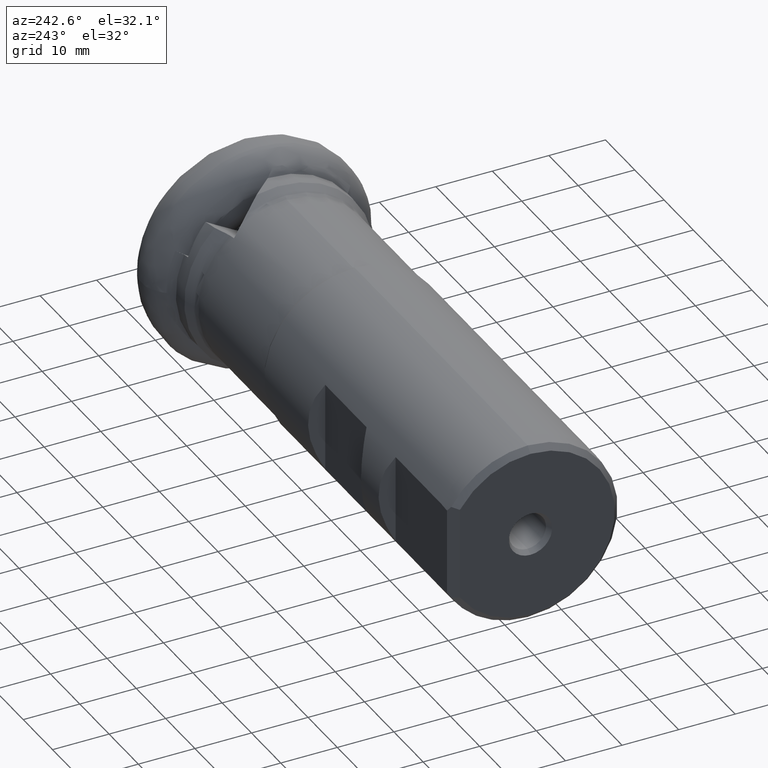
[diagram: clean part render]
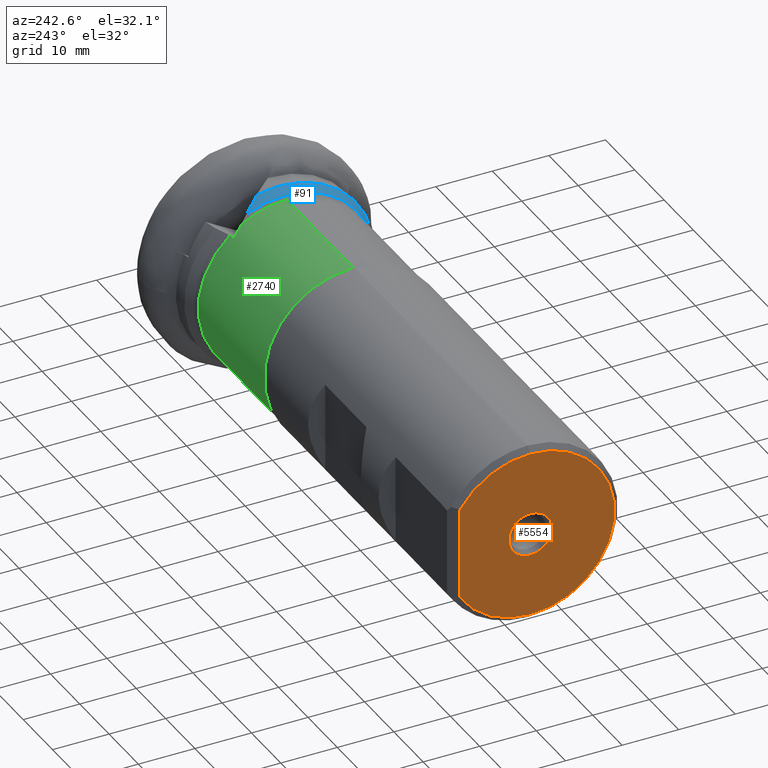
[diagram: same view with three faces highlighted in distinct colors, each labeled with its STEP entity id]
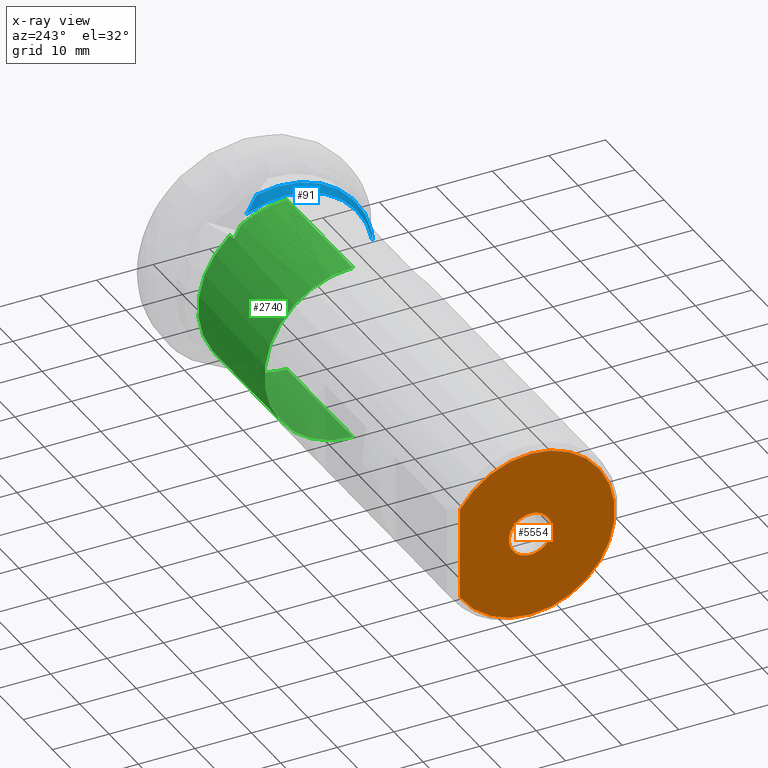
[diagram: x-ray of the same camera — body ghosted, the three highlighted faces saturated]
A machine part, auxiliary view with three faces highlighted in distinct colors.
The next image is the same camera in x-ray (body ghosted, the three faces saturated) — at least one of them is partly hidden behind the body in this view.
Their STEP definitions:

[orange] entity #5554 — the highlighted planar face has unit normal (-1, 0, 0).
#124 = ORIENTED_EDGE ( 'NONE', *, *, #5889, .F. ) ;
#247 = AXIS2_PLACEMENT_3D ( 'NONE', #1382, #2909, #1938 ) ;
#461 = EDGE_LOOP ( 'NONE', ( #4082, #124, #570, #871 ) ) ;
#477 = CIRCLE ( 'NONE', #3509, 14.89999999999998800 ) ;
#561 = EDGE_CURVE ( 'NONE', #2076, #1329, #477, .T. ) ;
#570 = ORIENTED_EDGE ( 'NONE', *, *, #3918, .F. ) ;
#593 = AXIS2_PLACEMENT_3D ( 'NONE', #4986, #5922, #1128 ) ;
#647 = CARTESIAN_POINT ( 'NONE',  ( -98.75000000000000000, 12.49999999999999100, -25.00000000000000000 ) ) ;
#733 = AXIS2_PLACEMENT_3D ( 'NONE', #1921, #6398, #3883 ) ;
#762 = FACE_BOUND ( 'NONE', #1785, .T. ) ;
#871 = ORIENTED_EDGE ( 'NONE', *, *, #561, .F. ) ;
#1004 = DIRECTION ( 'NONE',  ( 0.0000000000000000000, 0.0000000000000000000, -1.000000000000000000 ) ) ;
#1076 = CIRCLE ( 'NONE', #3526, 3.827350269189615100 ) ;
#1128 = DIRECTION ( 'NONE',  ( 0.0000000000000000000, 0.0000000000000000000, 1.000000000000000000 ) ) ;
#1329 = VERTEX_POINT ( 'NONE', #2568 ) ;
#1382 = CARTESIAN_POINT ( 'NONE',  ( -98.75000000000000000, 0.0000000000000000000, 0.0000000000000000000 ) ) ;
#1785 = EDGE_LOOP ( 'NONE', ( #5994, #1803 ) ) ;
#1803 = ORIENTED_EDGE ( 'NONE', *, *, #4652, .T. ) ;
#1854 = CARTESIAN_POINT ( 'NONE',  ( -98.75000000000000000, 0.0000000000000000000, 0.0000000000000000000 ) ) ;
#1921 = CARTESIAN_POINT ( 'NONE',  ( -98.75000000000000000, 0.0000000000000000000, 0.0000000000000000000 ) ) ;
#1938 = DIRECTION ( 'NONE',  ( 0.0000000000000000000, 0.0000000000000000000, -1.000000000000000000 ) ) ;
#2039 = CARTESIAN_POINT ( 'NONE',  ( -98.75000000000000000, 12.49999999999999100, 8.109253973085310800 ) ) ;
#2076 = VERTEX_POINT ( 'NONE', #2039 ) ;
#2282 = EDGE_CURVE ( 'NONE', #5644, #2076, #4859, .T. ) ;
#2408 = CARTESIAN_POINT ( 'NONE',  ( -98.75000000000000000, 4.687152256378822200E-016, -3.827350269189615100 ) ) ;
#2412 = DIRECTION ( 'NONE',  ( 1.000000000000000000, -0.0000000000000000000, -0.0000000000000000000 ) ) ;
#2568 = CARTESIAN_POINT ( 'NONE',  ( -98.75000000000000000, 1.885956070686923400E-015, 14.89999999999998800 ) ) ;
#2734 = EDGE_CURVE ( 'NONE', #6203, #5302, #6091, .T. ) ;
#2816 = CIRCLE ( 'NONE', #3982, 14.89999999999998800 ) ;
#2909 = DIRECTION ( 'NONE',  ( 1.000000000000000000, -0.0000000000000000000, -0.0000000000000000000 ) ) ;
#3015 = DIRECTION ( 'NONE',  ( 1.000000000000000000, -0.0000000000000000000, -0.0000000000000000000 ) ) ;
#3509 = AXIS2_PLACEMENT_3D ( 'NONE', #1854, #6336, #4821 ) ;
#3521 = PLANE ( 'NONE',  #593 ) ;
#3526 = AXIS2_PLACEMENT_3D ( 'NONE', #6461, #2412, #5212 ) ;
#3565 = VECTOR ( 'NONE', #5121, 1000.000000000000000 ) ;
#3629 = CARTESIAN_POINT ( 'NONE',  ( -98.75000000000000000, 12.49999999999999100, -8.109253973085310800 ) ) ;
#3883 = DIRECTION ( 'NONE',  ( 0.0000000000000000000, 0.0000000000000000000, -1.000000000000000000 ) ) ;
#3918 = EDGE_CURVE ( 'NONE', #1329, #6176, #2816, .T. ) ;
#3982 = AXIS2_PLACEMENT_3D ( 'NONE', #5962, #3015, #1004 ) ;
#4082 = ORIENTED_EDGE ( 'NONE', *, *, #2282, .F. ) ;
#4652 = EDGE_CURVE ( 'NONE', #5302, #6203, #1076, .T. ) ;
#4667 = CARTESIAN_POINT ( 'NONE',  ( -98.75000000000000000, 0.0000000000000000000, 3.827350269189615100 ) ) ;
#4821 = DIRECTION ( 'NONE',  ( 0.0000000000000000000, 0.0000000000000000000, -1.000000000000000000 ) ) ;
#4859 = LINE ( 'NONE', #647, #3565 ) ;
#4986 = CARTESIAN_POINT ( 'NONE',  ( -98.75000000000000000, 14.89999999999998800, 0.0000000000000000000 ) ) ;
#5121 = DIRECTION ( 'NONE',  ( -0.0000000000000000000, -0.0000000000000000000, 1.000000000000000000 ) ) ;
#5196 = CARTESIAN_POINT ( 'NONE',  ( -98.75000000000000000, 0.0000000000000000000, -14.89999999999998800 ) ) ;
#5212 = DIRECTION ( 'NONE',  ( 0.0000000000000000000, 0.0000000000000000000, -1.000000000000000000 ) ) ;
#5302 = VERTEX_POINT ( 'NONE', #2408 ) ;
#5554 = ADVANCED_FACE ( 'NONE', ( #5587, #762 ), #3521, .T. ) ;
#5587 = FACE_OUTER_BOUND ( 'NONE', #461, .T. ) ;
#5644 = VERTEX_POINT ( 'NONE', #3629 ) ;
#5889 = EDGE_CURVE ( 'NONE', #6176, #5644, #6204, .T. ) ;
#5922 = DIRECTION ( 'NONE',  ( -1.000000000000000000, 0.0000000000000000000, 0.0000000000000000000 ) ) ;
#5962 = CARTESIAN_POINT ( 'NONE',  ( -98.75000000000000000, 0.0000000000000000000, 0.0000000000000000000 ) ) ;
#5994 = ORIENTED_EDGE ( 'NONE', *, *, #2734, .T. ) ;
#6091 = CIRCLE ( 'NONE', #733, 3.827350269189615100 ) ;
#6176 = VERTEX_POINT ( 'NONE', #5196 ) ;
#6203 = VERTEX_POINT ( 'NONE', #4667 ) ;
#6204 = CIRCLE ( 'NONE', #247, 14.89999999999998800 ) ;
#6336 = DIRECTION ( 'NONE',  ( 1.000000000000000000, -0.0000000000000000000, -0.0000000000000000000 ) ) ;
#6398 = DIRECTION ( 'NONE',  ( 1.000000000000000000, -0.0000000000000000000, -0.0000000000000000000 ) ) ;
#6461 = CARTESIAN_POINT ( 'NONE',  ( -98.75000000000000000, 0.0000000000000000000, 0.0000000000000000000 ) ) ;

[blue] entity #91 — the highlighted conical surface has half-angle 27.072 deg.
#91 = ADVANCED_FACE ( 'NONE', ( #4106 ), #2334, .T. ) ;
#101 = CARTESIAN_POINT ( 'NONE',  ( -12.99999999999999800, 3.998106028385802100, 16.31732662496480300 ) ) ;
#249 = CARTESIAN_POINT ( 'NONE',  ( -14.72339999999999800, -15.63252926984126700, 3.007148356365798100 ) ) ;
#281 = CIRCLE ( 'NONE', #4675, 15.91913667915560600 ) ;
#363 = CARTESIAN_POINT ( 'NONE',  ( -14.72339999999999800, 6.684174557346136000, 14.44786223275138900 ) ) ;
#507 = DIRECTION ( 'NONE',  ( 1.000000000000000000, -0.0000000000000000000, -0.0000000000000000000 ) ) ;
#617 = DIRECTION ( 'NONE',  ( 1.000000000000000000, -0.0000000000000000000, -0.0000000000000000000 ) ) ;
#643 = CIRCLE ( 'NONE', #3538, 16.80000000000000100 ) ;
#792 = CARTESIAN_POINT ( 'NONE',  ( -12.99999999999999800, -16.38294840775638400, 3.720080841701238800 ) ) ;
#884 = AXIS2_PLACEMENT_3D ( 'NONE', #3642, #617, #3557 ) ;
#983 = DIRECTION ( 'NONE',  ( 0.0000000000000000000, 0.0000000000000000000, -1.000000000000000000 ) ) ;
#1057 = EDGE_CURVE ( 'NONE', #4307, #4271, #5845, .T. ) ;
#1660 = EDGE_CURVE ( 'NONE', #5343, #5427, #6403, .T. ) ;
#2334 = CONICAL_SURFACE ( 'NONE', #884, 16.80000000000000100, 0.4725035751145750300 ) ;
#2356 = CARTESIAN_POINT ( 'NONE',  ( -14.72339999999999800, -15.63252926984126700, 3.007148356365798100 ) ) ;
#2506 = ORIENTED_EDGE ( 'NONE', *, *, #3447, .F. ) ;
#2704 = CARTESIAN_POINT ( 'NONE',  ( -14.72339999999999800, 6.684174557346136000, 14.44786223275138900 ) ) ;
#3137 = ORIENTED_EDGE ( 'NONE', *, *, #4956, .T. ) ;
#3447 = EDGE_CURVE ( 'NONE', #5343, #4307, #643, .T. ) ;
#3538 = AXIS2_PLACEMENT_3D ( 'NONE', #5826, #4874, #983 ) ;
#3557 = DIRECTION ( 'NONE',  ( 0.0000000000000000000, 0.0000000000000000000, -1.000000000000000000 ) ) ;
#3642 = CARTESIAN_POINT ( 'NONE',  ( -13.00000000000000000, 0.0000000000000000000, 0.0000000000000000000 ) ) ;
#3998 = DIRECTION ( 'NONE',  ( 0.0000000000000000000, 0.0000000000000000000, -1.000000000000000000 ) ) ;
#4106 = FACE_OUTER_BOUND ( 'NONE', #4348, .T. ) ;
#4160 = CARTESIAN_POINT ( 'NONE',  ( -14.21259469577266400, 5.838984988474771300, 15.12655110445228800 ) ) ;
#4208 = CARTESIAN_POINT ( 'NONE',  ( -13.63734042177240400, 4.942401257743641800, 15.75056026176461700 ) ) ;
#4271 = VERTEX_POINT ( 'NONE', #2356 ) ;
#4291 = CARTESIAN_POINT ( 'NONE',  ( -14.15033999104015700, -15.88488492053111200, 3.245843614536485500 ) ) ;
#4307 = VERTEX_POINT ( 'NONE', #4972 ) ;
#4348 = EDGE_LOOP ( 'NONE', ( #2506, #4377, #3137, #6160 ) ) ;
#4377 = ORIENTED_EDGE ( 'NONE', *, *, #1660, .T. ) ;
#4675 = AXIS2_PLACEMENT_3D ( 'NONE', #4969, #507, #3998 ) ;
#4693 = CARTESIAN_POINT ( 'NONE',  ( -13.57578202778335100, -16.13489961238327200, 3.483430411376357200 ) ) ;
#4867 = CARTESIAN_POINT ( 'NONE',  ( -12.99999999999999800, 3.998106028385802100, 16.31732662496480300 ) ) ;
#4874 = DIRECTION ( 'NONE',  ( 1.000000000000000000, -0.0000000000000000000, -0.0000000000000000000 ) ) ;
#4956 = EDGE_CURVE ( 'NONE', #5427, #4271, #281, .T. ) ;
#4969 = CARTESIAN_POINT ( 'NONE',  ( -14.72340000000000000, 0.0000000000000000000, 0.0000000000000000000 ) ) ;
#4972 = CARTESIAN_POINT ( 'NONE',  ( -12.99999999999999800, -16.38294840775638400, 3.720080841701238800 ) ) ;
#5343 = VERTEX_POINT ( 'NONE', #4867 ) ;
#5427 = VERTEX_POINT ( 'NONE', #363 ) ;
#5826 = CARTESIAN_POINT ( 'NONE',  ( -13.00000000000000000, 0.0000000000000000000, 0.0000000000000000000 ) ) ;
#5845 = B_SPLINE_CURVE_WITH_KNOTS ( 'NONE', 3,
 ( #792, #4693, #4291, #249 ),
 .UNSPECIFIED., .F., .F.,
 ( 4, 4 ),
 ( 2.327656462826932700E-007, 0.002010583275183320400 ),
 .UNSPECIFIED. ) ;
#6160 = ORIENTED_EDGE ( 'NONE', *, *, #1057, .F. ) ;
#6403 =( BOUNDED_CURVE ( )  B_SPLINE_CURVE ( 3, ( #101, #4208, #4160, #2704 ),
 .UNSPECIFIED., .F., .F. ) 
 B_SPLINE_CURVE_WITH_KNOTS ( ( 4, 4 ),
 ( 2.550094660820041400, 2.678295221997243100 ),
 .UNSPECIFIED. ) 
 CURVE ( )  GEOMETRIC_REPRESENTATION_ITEM ( )  RATIONAL_B_SPLINE_CURVE ( ( 1.000000000000000000, 0.9986308535734630400, 0.9986308535734630400, 1.000000000000000000 ) ) 
 REPRESENTATION_ITEM ( '' )  );

[green] entity #2740 — the highlighted cylindrical surface (partial cylindrical patch) has radius 15.7 mm, axis along (1, -0, -0).
#10 = AXIS2_PLACEMENT_3D ( 'NONE', #440, #932, #3954 ) ;
#28 = ORIENTED_EDGE ( 'NONE', *, *, #2594, .T. ) ;
#69 = EDGE_LOOP ( 'NONE', ( #4000, #3940, #5623, #28, #3180, #708, #5387, #5807, #4114, #2925 ) ) ;
#420 = CARTESIAN_POINT ( 'NONE',  ( -16.82544663111128700, 9.978874949329496100, 12.12072830920836200 ) ) ;
#440 = CARTESIAN_POINT ( 'NONE',  ( -38.23038475772932500, 0.0000000000000000000, 0.0000000000000000000 ) ) ;
#457 = EDGE_CURVE ( 'NONE', #2619, #6039, #4775, .T. ) ;
#480 = CYLINDRICAL_SURFACE ( 'NONE', #3114, 15.69999999999999900 ) ;
#510 = CARTESIAN_POINT ( 'NONE',  ( -15.63363394381394800, 10.11602382964587900, 12.00650081739207500 ) ) ;
#535 = CARTESIAN_POINT ( 'NONE',  ( -16.03173401764762600, 10.07052421958364800, 12.04483631135734900 ) ) ;
#554 = VERTEX_POINT ( 'NONE', #5646 ) ;
#708 = ORIENTED_EDGE ( 'NONE', *, *, #831, .F. ) ;
#831 = EDGE_CURVE ( 'NONE', #5849, #982, #6244, .T. ) ;
#904 = DIRECTION ( 'NONE',  ( 0.0000000000000000000, 0.0000000000000000000, -1.000000000000000000 ) ) ;
#926 = EDGE_CURVE ( 'NONE', #982, #4244, #1029, .T. ) ;
#932 = DIRECTION ( 'NONE',  ( 1.000000000000000000, -0.0000000000000000000, -0.0000000000000000000 ) ) ;
#933 = EDGE_CURVE ( 'NONE', #5849, #5861, #6318, .T. ) ;
#934 = CARTESIAN_POINT ( 'NONE',  ( -15.63363394381394400, 7.587521964114414700, -13.74479939628371600 ) ) ;
#982 = VERTEX_POINT ( 'NONE', #510 ) ;
#1029 =( BOUNDED_CURVE ( )  B_SPLINE_CURVE ( 3, ( #3049, #535, #4541, #5018 ),
 .UNSPECIFIED., .F., .F. ) 
 B_SPLINE_CURVE_WITH_KNOTS ( ( 4, 4 ),
 ( 1.917843457348223900, 1.929212139795828200 ),
 .UNSPECIFIED. ) 
 CURVE ( )  GEOMETRIC_REPRESENTATION_ITEM ( )  RATIONAL_B_SPLINE_CURVE ( ( 1.000000000000000000, 0.9999892294506184100, 0.9999892294506184100, 1.000000000000000000 ) ) 
 REPRESENTATION_ITEM ( '' )  );
#1061 = DIRECTION ( 'NONE',  ( 0.0000000000000000000, 0.0000000000000000000, -1.000000000000000000 ) ) ;
#1125 = CARTESIAN_POINT ( 'NONE',  ( -16.47283593333510500, 6.223489411799306500, -14.43408756161458200 ) ) ;
#1346 = AXIS2_PLACEMENT_3D ( 'NONE', #4773, #6222, #4754 ) ;
#1535 = CARTESIAN_POINT ( 'NONE',  ( -15.63363394381394800, 0.0000000000000000000, 0.0000000000000000000 ) ) ;
#1561 = CARTESIAN_POINT ( 'NONE',  ( -16.07485857056246900, 6.918089363403416000, -14.11434531797700300 ) ) ;
#1652 = DIRECTION ( 'NONE',  ( 1.000000000000000000, -0.0000000000000000000, -0.0000000000000000000 ) ) ;
#1678 = DIRECTION ( 'NONE',  ( 1.000000000000000000, -0.0000000000000000000, -0.0000000000000000000 ) ) ;
#1841 = EDGE_CURVE ( 'NONE', #3689, #6039, #5637, .T. ) ;
#1898 = CARTESIAN_POINT ( 'NONE',  ( -16.47283593333510900, 9.388541802907672800, 12.60674371160888200 ) ) ;
#1960 = VERTEX_POINT ( 'NONE', #2294 ) ;
#2049 = DIRECTION ( 'NONE',  ( 1.000000000000000000, -0.0000000000000000000, -0.0000000000000000000 ) ) ;
#2109 = EDGE_CURVE ( 'NONE', #3710, #554, #5480, .T. ) ;
#2294 = CARTESIAN_POINT ( 'NONE',  ( -38.23038475772932500, 0.0000000000000000000, -15.69999999999999600 ) ) ;
#2344 =( BOUNDED_CURVE ( )  B_SPLINE_CURVE ( 3, ( #6109, #5558, #5597, #4147 ),
 .UNSPECIFIED., .F., .F. ) 
 B_SPLINE_CURVE_WITH_KNOTS ( ( 4, 4 ),
 ( 1.917843457348224100, 1.929212139795828200 ),
 .UNSPECIFIED. ) 
 CURVE ( )  GEOMETRIC_REPRESENTATION_ITEM ( )  RATIONAL_B_SPLINE_CURVE ( ( 1.000000000000000000, 0.9999892294506184100, 0.9999892294506184100, 1.000000000000000000 ) ) 
 REPRESENTATION_ITEM ( '' )  );
#2443 = FACE_OUTER_BOUND ( 'NONE', #69, .T. ) ;
#2519 = CARTESIAN_POINT ( 'NONE',  ( 0.0000000000000000000, 0.0000000000000000000, -15.69999999999999900 ) ) ;
#2591 = VECTOR ( 'NONE', #1678, 1000.000000000000000 ) ;
#2594 = EDGE_CURVE ( 'NONE', #3689, #4244, #2795, .T. ) ;
#2619 = VERTEX_POINT ( 'NONE', #6332 ) ;
#2740 = ADVANCED_FACE ( 'NONE', ( #2443 ), #480, .T. ) ;
#2795 =( BOUNDED_CURVE ( )  B_SPLINE_CURVE ( 3, ( #4352, #5918, #1898, #2875 ),
 .UNSPECIFIED., .F., .F. ) 
 B_SPLINE_CURVE_WITH_KNOTS ( ( 4, 4 ),
 ( 2.488683765501562600, 2.634667273066977300 ),
 .UNSPECIFIED. ) 
 CURVE ( )  GEOMETRIC_REPRESENTATION_ITEM ( )  RATIONAL_B_SPLINE_CURVE ( ( 1.000000000000000000, 0.9982248563035449600, 0.9982248563035449600, 1.000000000000000000 ) ) 
 REPRESENTATION_ITEM ( '' )  );
#2875 = CARTESIAN_POINT ( 'NONE',  ( -16.82544663111128700, 9.978874949329496100, 12.12072830920836200 ) ) ;
#2925 = ORIENTED_EDGE ( 'NONE', *, *, #5426, .F. ) ;
#3049 = CARTESIAN_POINT ( 'NONE',  ( -15.63363394381394800, 10.11602382964587900, 12.00650081739207500 ) ) ;
#3048 = LINE ( 'NONE', #2519, #3440 ) ;
#3114 = AXIS2_PLACEMENT_3D ( 'NONE', #4902, #3479, #904 ) ;
#3180 = ORIENTED_EDGE ( 'NONE', *, *, #926, .F. ) ;
#3358 = AXIS2_PLACEMENT_3D ( 'NONE', #6162, #1652, #4672 ) ;
#3393 = CARTESIAN_POINT ( 'NONE',  ( -15.63363394381394800, 8.109584465045626800, 13.44338647083727200 ) ) ;
#3440 = VECTOR ( 'NONE', #4484, 1000.000000000000000 ) ;
#3442 = CARTESIAN_POINT ( 'NONE',  ( -15.63363394381394800, 1.922695474661344300E-015, 15.69999999999999900 ) ) ;
#3446 = CIRCLE ( 'NONE', #10, 15.69999999999999600 ) ;
#3479 = DIRECTION ( 'NONE',  ( 1.000000000000000000, -0.0000000000000000000, -0.0000000000000000000 ) ) ;
#3493 = CARTESIAN_POINT ( 'NONE',  ( -16.82544663111127600, 5.507421153479032000, -14.70232336191161900 ) ) ;
#3689 = VERTEX_POINT ( 'NONE', #3393 ) ;
#3710 = VERTEX_POINT ( 'NONE', #5326 ) ;
#3815 = CARTESIAN_POINT ( 'NONE',  ( -16.82544663111127600, 5.507421153479032000, -14.70232336191161900 ) ) ;
#3940 = ORIENTED_EDGE ( 'NONE', *, *, #457, .T. ) ;
#3954 = DIRECTION ( 'NONE',  ( 0.0000000000000000000, 0.0000000000000000000, -1.000000000000000000 ) ) ;
#4000 = ORIENTED_EDGE ( 'NONE', *, *, #4965, .T. ) ;
#4114 = ORIENTED_EDGE ( 'NONE', *, *, #2109, .F. ) ;
#4147 = CARTESIAN_POINT ( 'NONE',  ( -16.82544663111127600, 5.507421153479032000, -14.70232336191161900 ) ) ;
#4244 = VERTEX_POINT ( 'NONE', #420 ) ;
#4352 = CARTESIAN_POINT ( 'NONE',  ( -15.63363394381394800, 8.109584465045626800, 13.44338647083727200 ) ) ;
#4484 = DIRECTION ( 'NONE',  ( 1.000000000000000000, -0.0000000000000000000, -0.0000000000000000000 ) ) ;
#4541 = CARTESIAN_POINT ( 'NONE',  ( -16.42900919228528200, 10.02480743374994900, 12.08291255206480300 ) ) ;
#4672 = DIRECTION ( 'NONE',  ( 0.0000000000000000000, 0.0000000000000000000, -1.000000000000000000 ) ) ;
#4754 = DIRECTION ( 'NONE',  ( 0.0000000000000000000, 0.0000000000000000000, -1.000000000000000000 ) ) ;
#4773 = CARTESIAN_POINT ( 'NONE',  ( -15.63363394381394800, 0.0000000000000000000, 0.0000000000000000000 ) ) ;
#4775 = LINE ( 'NONE', #5627, #2591 ) ;
#4902 = CARTESIAN_POINT ( 'NONE',  ( 0.0000000000000000000, 0.0000000000000000000, 0.0000000000000000000 ) ) ;
#4965 = EDGE_CURVE ( 'NONE', #1960, #2619, #3446, .T. ) ;
#5018 = CARTESIAN_POINT ( 'NONE',  ( -16.82544663111128700, 9.978874949329496100, 12.12072830920836200 ) ) ;
#5132 = CARTESIAN_POINT ( 'NONE',  ( -15.63363394381394400, 7.587521964114414700, -13.74479939628371600 ) ) ;
#5135 = AXIS2_PLACEMENT_3D ( 'NONE', #1535, #2049, #1061 ) ;
#5326 = CARTESIAN_POINT ( 'NONE',  ( -15.63363394381394800, 0.0000000000000000000, -15.69999999999999900 ) ) ;
#5387 = ORIENTED_EDGE ( 'NONE', *, *, #933, .T. ) ;
#5426 = EDGE_CURVE ( 'NONE', #1960, #3710, #3048, .T. ) ;
#5480 = CIRCLE ( 'NONE', #3358, 15.69999999999999900 ) ;
#5558 = CARTESIAN_POINT ( 'NONE',  ( -16.03173401764764000, 5.395872120269034500, -14.74374795926452300 ) ) ;
#5597 = CARTESIAN_POINT ( 'NONE',  ( -16.42900919228528200, 5.451705504919147000, -14.72319418170689300 ) ) ;
#5602 = EDGE_CURVE ( 'NONE', #554, #5861, #2344, .T. ) ;
#5623 = ORIENTED_EDGE ( 'NONE', *, *, #1841, .F. ) ;
#5627 = CARTESIAN_POINT ( 'NONE',  ( 0.0000000000000000000, 1.922695474661344300E-015, 15.69999999999999900 ) ) ;
#5637 = CIRCLE ( 'NONE', #5135, 15.69999999999999900 ) ;
#5646 = CARTESIAN_POINT ( 'NONE',  ( -15.63363394381394800, 5.339922803597363400, -14.76398403045806300 ) ) ;
#5807 = ORIENTED_EDGE ( 'NONE', *, *, #5602, .F. ) ;
#5849 = VERTEX_POINT ( 'NONE', #934 ) ;
#5861 = VERTEX_POINT ( 'NONE', #3493 ) ;
#5918 = CARTESIAN_POINT ( 'NONE',  ( -16.07485857056248300, 8.764336921452446900, 13.04841379334669900 ) ) ;
#6039 = VERTEX_POINT ( 'NONE', #3442 ) ;
#6109 = CARTESIAN_POINT ( 'NONE',  ( -15.63363394381394800, 5.339922803597363400, -14.76398403045806300 ) ) ;
#6162 = CARTESIAN_POINT ( 'NONE',  ( -15.63363394381394800, 0.0000000000000000000, 0.0000000000000000000 ) ) ;
#6222 = DIRECTION ( 'NONE',  ( 1.000000000000000000, -0.0000000000000000000, -0.0000000000000000000 ) ) ;
#6244 = CIRCLE ( 'NONE', #1346, 15.69999999999999900 ) ;
#6318 =( BOUNDED_CURVE ( )  B_SPLINE_CURVE ( 3, ( #5132, #1561, #1125, #3815 ),
 .UNSPECIFIED., .F., .F. ) 
 B_SPLINE_CURVE_WITH_KNOTS ( ( 4, 4 ),
 ( 2.488683765501563000, 2.634667273066977800 ),
 .UNSPECIFIED. ) 
 CURVE ( )  GEOMETRIC_REPRESENTATION_ITEM ( )  RATIONAL_B_SPLINE_CURVE ( ( 1.000000000000000000, 0.9982248563035449600, 0.9982248563035449600, 1.000000000000000000 ) ) 
 REPRESENTATION_ITEM ( '' )  );
#6332 = CARTESIAN_POINT ( 'NONE',  ( -38.23038475772932500, 1.922695474661343900E-015, 15.69999999999999600 ) ) ;